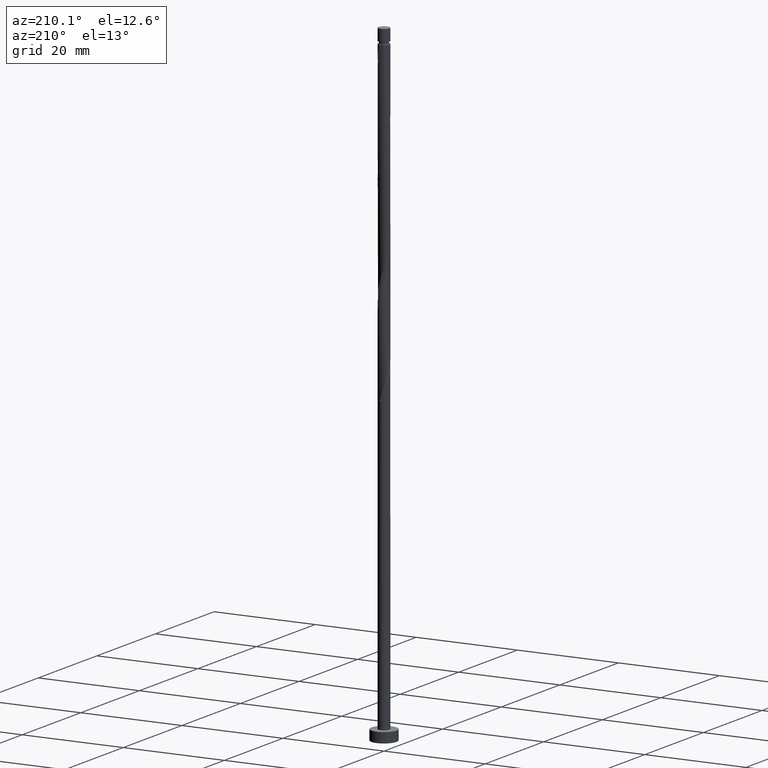
[diagram: clean part render]
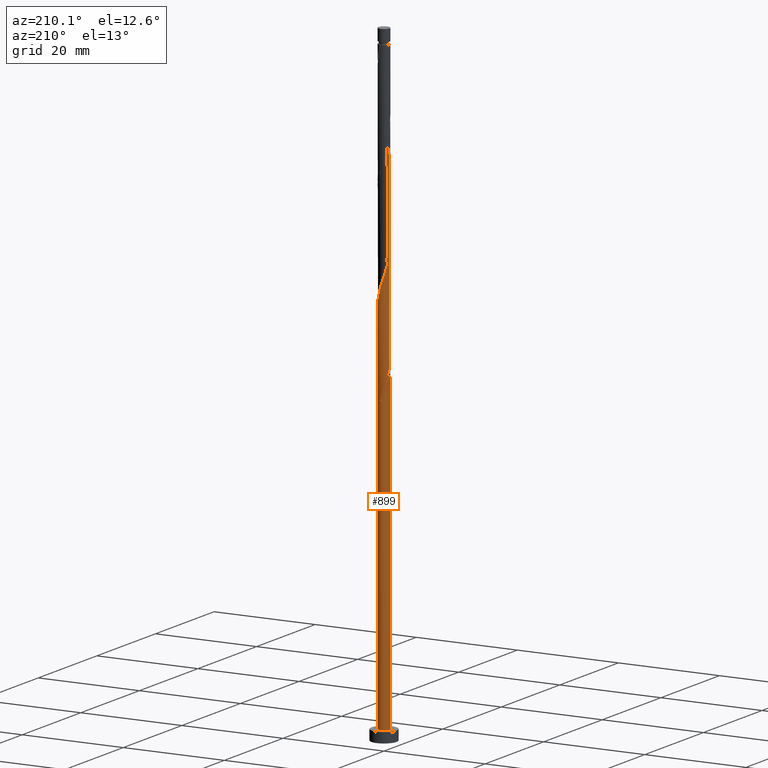
[diagram: same view with one face highlighted and labeled with its STEP entity id]
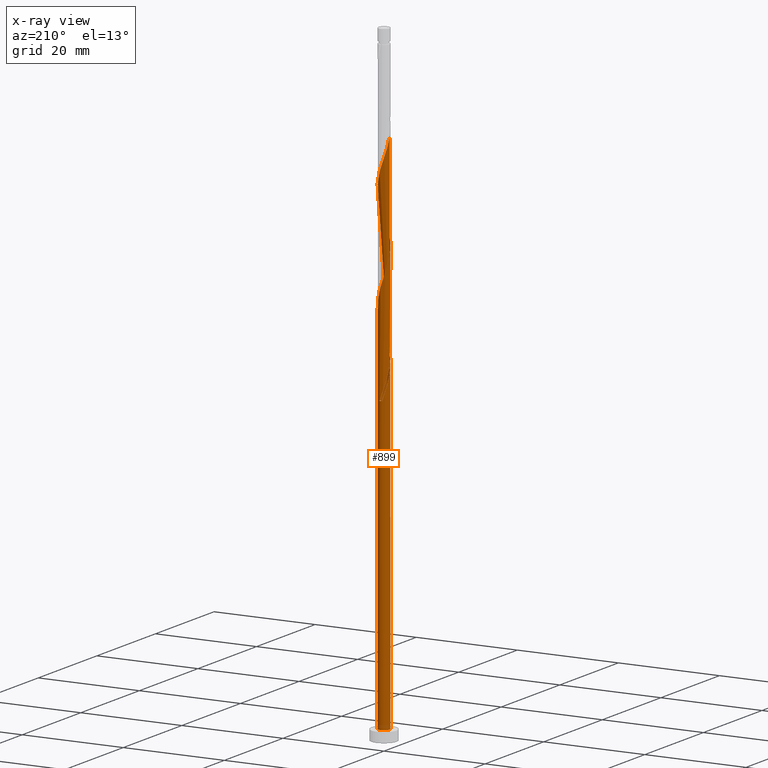
[diagram: x-ray of the same camera — body ghosted, the highlighted face saturated]
A machine part, auxiliary view. The second image highlights one B-rep face of the part: STEP entity #899.
The next image is the same camera in x-ray: the body ghosted, the highlighted face saturated — about 0% of this face is hidden behind the body in this view.
In plain terms, the highlighted cylindrical surface (bore or boss wall) has radius 1.1 mm, axis along (-0, -0, -1).
Its self-contained STEP definition (entity closure, byte-faithful):
#3 = CARTESIAN_POINT ( 'NONE',  ( 1.073093864886444537, -0.2980321636614846614, 94.63604752729968084 ) ) ;
#11 = CARTESIAN_POINT ( 'NONE',  ( 0.04815880949360650670, 1.112669916238338441, 60.26104752729966663 ) ) ;
#13 = CARTESIAN_POINT ( 'NONE',  ( 1.043330083761664806, 0.3896356628333070837, 96.71938086063299522 ) ) ;
#15 = CARTESIAN_POINT ( 'NONE',  ( -0.2980321636614846614, -1.073093864886444537, 89.42771419396635224 ) ) ;
#20 = CARTESIAN_POINT ( 'NONE',  ( 0.6929722627435899174, -0.8718618333782606200, 92.55271419396638066 ) ) ;
#25 = CARTESIAN_POINT ( 'NONE',  ( -0.1249366770839391017, -1.092881890562391600, 69.11521419396636645 ) ) ;
#40 = DIRECTION ( 'NONE',  ( -1.000000000000000000, 0.000000000000000000, 0.000000000000000000 ) ) ;
#42 = CARTESIAN_POINT ( 'NONE',  ( -1.100000000000001643, 0.06267111119107594830, 64.09423399662212262 ) ) ;
#71 = CARTESIAN_POINT ( 'NONE',  ( -0.3896356628333073058, 1.043330083761664806, 81.09438086063302364 ) ) ;
#77 = CARTESIAN_POINT ( 'NONE',  ( -1.100000000000001421, -1.311896493530488723E-15, 64.28374508582942326 ) ) ;
#96 = CARTESIAN_POINT ( 'NONE',  ( -1.100000000000001421, -0.1105541596785138275, 64.61804966123725080 ) ) ;
#98 = LINE ( 'NONE', #1273, #461 ) ;
#114 = CARTESIAN_POINT ( 'NONE',  ( -0.8718618333782606200, -0.6929722627435901394, 66.51104752729968084 ) ) ;
#120 = CARTESIAN_POINT ( 'NONE',  ( -0.4565409178933442225, -1.000784887120657052, 88.90688086063300943 ) ) ;
#122 = CARTESIAN_POINT ( 'NONE',  ( -0.5413039627884486116, 0.9575959585699624910, 102.4485475272996950 ) ) ;
#123 = ORIENTED_EDGE ( 'NONE', *, *, #410, .F. ) ;
#126 = CARTESIAN_POINT ( 'NONE',  ( 0.9575959585699624910, 0.5413039627884483895, 97.24021419396635224 ) ) ;
#132 = ORIENTED_EDGE ( 'NONE', *, *, #1030, .T. ) ;
#147 = ORIENTED_EDGE ( 'NONE', *, *, #1341, .T. ) ;
#154 = CARTESIAN_POINT ( 'NONE',  ( -1.100000000000000089, 0.000000000000000000, 2.000000000000000000 ) ) ;
#164 = CARTESIAN_POINT ( 'NONE',  ( -0.9575959585699624910, -0.5413039627884485006, 86.82354752729970926 ) ) ;
#172 = CARTESIAN_POINT ( 'NONE',  ( -0.5413039627884486116, 0.9575959585699624910, 60.78188086063302364 ) ) ;
#182 = CARTESIAN_POINT ( 'NONE',  ( 0.7434557527517321462, 0.8107240860492297418, 77.44854752729968084 ) ) ;
#189 = EDGE_CURVE ( 'NONE', #919, #224, #1407, .T. ) ;
#190 = CARTESIAN_POINT ( 'NONE',  ( 0.4565409178933443335, 1.000784887120657052, 78.49021419396633803 ) ) ;
#211 = DIRECTION ( 'NONE',  ( 1.000000000000000000, 0.000000000000000000, 0.000000000000000000 ) ) ;
#216 = CARTESIAN_POINT ( 'NONE',  ( -1.100000000000001643, 1.416848213012926496E-15, 65.61334996876993841 ) ) ;
#218 = CARTESIAN_POINT ( 'NONE',  ( 1.000784887120657052, -0.4565409178933442225, 94.11521419396635224 ) ) ;
#220 = CARTESIAN_POINT ( 'NONE',  ( -0.2188972361634566044, 1.078000000000001402, 59.74021419396634514 ) ) ;
#222 = CARTESIAN_POINT ( 'NONE',  ( -0.04815880949360622915, 1.112669916238338219, 100.8860475272996808 ) ) ;
#224 = VERTEX_POINT ( 'NONE', #692 ) ;
#225 = CARTESIAN_POINT ( 'NONE',  ( -0.8107240860492298529, 0.7434557527517319242, 82.65688086063300943 ) ) ;
#228 = CARTESIAN_POINT ( 'NONE',  ( 1.092881890562391600, -0.1249366770839391572, 95.15688086063299522 ) ) ;
#229 = CARTESIAN_POINT ( 'NONE',  ( -0.6150496721252035615, -0.9284759093548700104, 88.38604752729966663 ) ) ;
#232 = ORIENTED_EDGE ( 'NONE', *, *, #189, .F. ) ;
#245 = DIRECTION ( 'NONE',  ( -0.000000000000000000, -0.000000000000000000, -1.000000000000000000 ) ) ;
#256 = FACE_OUTER_BOUND ( 'NONE', #1118, .T. ) ;
#274 = CARTESIAN_POINT ( 'NONE',  ( -1.100000000000000089, 0.000000000000000000, 125.0000000000000000 ) ) ;
#294 = CARTESIAN_POINT ( 'NONE',  ( -0.4565409178933442225, -1.000784887120657052, 68.07354752729966663 ) ) ;
#295 = CARTESIAN_POINT ( 'NONE',  ( -0.7434557527517319242, -0.8107240860492298529, 67.03188086063302364 ) ) ;
#297 = VERTEX_POINT ( 'NONE', #1074 ) ;
#344 = CARTESIAN_POINT ( 'NONE',  ( 1.078000000000001402, 0.2188972361634567154, 75.36521419396633803 ) ) ;
#353 = CARTESIAN_POINT ( 'NONE',  ( 1.078000000000001402, 0.2188972361634567154, 96.19854752729966663 ) ) ;
#360 = CARTESIAN_POINT ( 'NONE',  ( 0.6150496721252037835, 0.9284759093548697884, 98.80271419396636645 ) ) ;
#367 = CARTESIAN_POINT ( 'NONE',  ( 0.9284759093548700104, -0.6150496721252037835, 93.59438086063300943 ) ) ;
#375 = CARTESIAN_POINT ( 'NONE',  ( -0.2188972361634566044, 1.078000000000001402, 59.74021419396634514 ) ) ;
#401 = CARTESIAN_POINT ( 'NONE',  ( -0.6150496721252035615, -0.9284759093548700104, 67.55271419396635224 ) ) ;
#410 = EDGE_CURVE ( 'NONE', #1195, #1306, #509, .T. ) ;
#412 = CARTESIAN_POINT ( 'NONE',  ( -1.100000000000001643, -7.346620363770735786E-16, 105.9504117524960805 ) ) ;
#435 = CARTESIAN_POINT ( 'NONE',  ( 0.1249366770839392821, 1.092881890562391600, 100.3652141939663522 ) ) ;
#444 = CARTESIAN_POINT ( 'NONE',  ( -0.6929722627435901394, 0.8718618333782606200, 102.9693808606330379 ) ) ;
#448 = CARTESIAN_POINT ( 'NONE',  ( -1.043330083761664806, -0.3896356628333071948, 65.46938086063300943 ) ) ;
#453 = CARTESIAN_POINT ( 'NONE',  ( 1.043330083761664806, 0.3896356628333070837, 75.88604752729969505 ) ) ;
#456 = CARTESIAN_POINT ( 'NONE',  ( 0.8718618333782606200, 0.6929722627435901394, 76.92771419396635224 ) ) ;
#461 = VECTOR ( 'NONE', #824, 1000.000000000000000 ) ;
#466 = CARTESIAN_POINT ( 'NONE',  ( 0.2188972361634572150, 1.078000000000001846, 59.74021419396634514 ) ) ;
#481 = CIRCLE ( 'NONE', #992, 1.100000000000000089 ) ;
#489 = CARTESIAN_POINT ( 'NONE',  ( 0.9284759093548700104, -0.6150496721252037835, 72.76104752729968084 ) ) ;
#509 =( BOUNDED_CURVE ( )  B_SPLINE_CURVE ( 2, ( #375, #1188, #172, #942, #628, #809, #1393, #1263, #931, #42, #1272 ),
 .UNSPECIFIED., .F., .T. ) 
 B_SPLINE_CURVE_WITH_KNOTS ( ( 3, 2, 2, 2, 2, 3 ),
 ( 0.000000000000000000, 0.01249999999999995559, 0.02500000000000002220, 0.03749999999999997780, 0.05000000000000004441, 0.05453220231385522143 ),
 .UNSPECIFIED. ) 
 CURVE ( )  GEOMETRIC_REPRESENTATION_ITEM ( )  RATIONAL_B_SPLINE_CURVE ( ( 0.9090909090909261581, 0.8978984914501420000, 0.9090909090909261581, 0.8978984914501420000, 0.9090909090909261581, 0.8978984914501420000, 0.9090909090909261581, 0.8978984914501420000, 0.9090909090909261581, 0.9050328050005904679, 0.9039174447099482812 ) ) 
 REPRESENTATION_ITEM ( '' )  );
#510 = CARTESIAN_POINT ( 'NONE',  ( -0.1249366770839391017, -1.092881890562391600, 89.94854752729966663 ) ) ;
#526 = VERTEX_POINT ( 'NONE', #547 ) ;
#528 = CARTESIAN_POINT ( 'NONE',  ( 0.04815880949360637486, -1.112669916238338219, 69.63604752729969505 ) ) ;
#542 = CARTESIAN_POINT ( 'NONE',  ( 0.3896356628333070837, -1.043330083761664806, 70.67771419396635224 ) ) ;
#547 = CARTESIAN_POINT ( 'NONE',  ( 1.100000000000000089, 0.000000000000000000, 2.000000000000000000 ) ) ;
#556 = VECTOR ( 'NONE', #245, 1000.000000000000000 ) ;
#575 = CARTESIAN_POINT ( 'NONE',  ( -0.1249366770839390184, 1.092881890562391822, 60.78188086063300233 ) ) ;
#584 = CARTESIAN_POINT ( 'NONE',  ( -0.7434557527517322573, 0.8107240860492299639, 62.86521419396634514 ) ) ;
#601 = AXIS2_PLACEMENT_3D ( 'NONE', #1383, #1274, #1170 ) ;
#612 = DIRECTION ( 'NONE',  ( 1.000000000000000000, 0.000000000000000000, 0.000000000000000000 ) ) ;
#616 = CARTESIAN_POINT ( 'NONE',  ( -0.7434557527517319242, -0.8107240860492298529, 87.86521419396632382 ) ) ;
#628 = CARTESIAN_POINT ( 'NONE',  ( -0.8107240860492298529, 0.7434557527517319242, 61.82354752729968084 ) ) ;
#634 = CARTESIAN_POINT ( 'NONE',  ( 0.000000000000000000, 0.000000000000000000, 2.000000000000000000 ) ) ;
#637 = CARTESIAN_POINT ( 'NONE',  ( -0.04815880949360622915, 1.112669916238338219, 80.05271419396633803 ) ) ;
#649 = CARTESIAN_POINT ( 'NONE',  ( 0.2980321636614847169, 1.073093864886444537, 79.01104752729966663 ) ) ;
#658 = CARTESIAN_POINT ( 'NONE',  ( -0.5413039627884486116, 0.9575959585699624910, 81.61521419396633803 ) ) ;
#659 = CARTESIAN_POINT ( 'NONE',  ( 0.1249366770839392821, 1.092881890562391600, 79.53188086063299522 ) ) ;
#667 = CARTESIAN_POINT ( 'NONE',  ( -0.9284759093548700104, 0.6150496721252035615, 104.0110475272996950 ) ) ;
#688 = CARTESIAN_POINT ( 'NONE',  ( -0.9575959585699628240, 0.5413039627884487226, 63.90688086063300943 ) ) ;
#689 = AXIS2_PLACEMENT_3D ( 'NONE', #634, #1073, #612 ) ;
#692 = CARTESIAN_POINT ( 'NONE',  ( -1.100000000000001643, 1.416848213012926496E-15, 65.61334996876993841 ) ) ;
#705 = CYLINDRICAL_SURFACE ( 'NONE', #1251, 1.100000000000000089 ) ;
#715 = CARTESIAN_POINT ( 'NONE',  ( 1.000784887120657052, -0.4565409178933442225, 73.28188086063298101 ) ) ;
#726 = CARTESIAN_POINT ( 'NONE',  ( -1.073093864886444315, 0.2980321636614846614, 84.21938086063303786 ) ) ;
#733 = EDGE_CURVE ( 'NONE', #948, #526, #1011, .T. ) ;
#762 = CARTESIAN_POINT ( 'NONE',  ( -1.100000000000001421, -1.311896493530488723E-15, 64.28374508582942326 ) ) ;
#772 = CARTESIAN_POINT ( 'NONE',  ( -0.8718618333782606200, 0.6929722627435899174, 63.38604752729966663 ) ) ;
#782 = CARTESIAN_POINT ( 'NONE',  ( -1.112669916238338219, -0.04815880949360647201, 85.26104752729968084 ) ) ;
#786 = CARTESIAN_POINT ( 'NONE',  ( -1.043330083761665028, 0.3896356628333072503, 64.42771419396632382 ) ) ;
#792 = CARTESIAN_POINT ( 'NONE',  ( -1.078000000000001846, 0.2188972361634569930, 64.94854752729966663 ) ) ;
#809 = CARTESIAN_POINT ( 'NONE',  ( -0.9284759093548700104, 0.6150496721252035615, 62.34438086063300943 ) ) ;
#824 = DIRECTION ( 'NONE',  ( -0.000000000000000000, -0.000000000000000000, -1.000000000000000000 ) ) ;
#828 = CARTESIAN_POINT ( 'NONE',  ( 0.000000000000000000, 0.000000000000000000, 2.000000000000000000 ) ) ;
#834 = CARTESIAN_POINT ( 'NONE',  ( 1.092881890562391600, -0.1249366770839391572, 74.32354752729966663 ) ) ;
#862 = CARTESIAN_POINT ( 'NONE',  ( -1.092881890562391600, 0.1249366770839390461, 105.5735475272996666 ) ) ;
#869 = CARTESIAN_POINT ( 'NONE',  ( -1.100000000000002309, 0.06267111119107098005, 105.7609006632888367 ) ) ;
#882 = CARTESIAN_POINT ( 'NONE',  ( -0.9575959585699624910, -0.5413039627884485006, 65.99021419396635224 ) ) ;
#889 = CARTESIAN_POINT ( 'NONE',  ( 0.8107240860492298529, -0.7434557527517319242, 72.24021419396635224 ) ) ;
#892 = CARTESIAN_POINT ( 'NONE',  ( -0.3896356628333073058, 1.043330083761664806, 101.9277141939663522 ) ) ;
#899 = ADVANCED_FACE ( 'NONE', ( #256 ), #705, .T. ) ;
#902 = CARTESIAN_POINT ( 'NONE',  ( 0.7434557527517321462, 0.8107240860492297418, 98.28188086063300943 ) ) ;
#919 = VERTEX_POINT ( 'NONE', #1381 ) ;
#931 = CARTESIAN_POINT ( 'NONE',  ( -1.092881890562391600, 0.1249366770839390461, 63.90688086063300943 ) ) ;
#942 = CARTESIAN_POINT ( 'NONE',  ( -0.6929722627435901394, 0.8718618333782606200, 61.30271419396635935 ) ) ;
#948 = VERTEX_POINT ( 'NONE', #154 ) ;
#970 = CIRCLE ( 'NONE', #601, 1.100000000000000089 ) ;
#991 = CARTESIAN_POINT ( 'NONE',  ( -1.000784887120657052, 0.4565409178933440004, 104.5318808606330094 ) ) ;
#992 = AXIS2_PLACEMENT_3D ( 'NONE', #828, #1444, #211 ) ;
#994 =( BOUNDED_CURVE ( )  B_SPLINE_CURVE ( 2, ( #762, #96, #998, #448, #882, #114, #295, #401, #294, #1192, #25, #528, #1419, #542, #1436, #1111, #889, #489, #715, #1056, #834, #1085, #344, #453, #999, #456, #182, #1312, #190, #649, #659, #637, #1076, #71, #658, #1403, #225, #1348, #1362, #726, #1177, #782, #1237, #1243, #164, #1123, #616, #229, #120, #15, #510, #1168, #1131, #1006, #1347, #20, #1367, #367, #218, #3, #228, #1121, #353, #13, #126, #1360, #902, #360, #1125, #1343, #435, #222, #1330, #892, #122, #444, #1009, #667, #991, #1337, #862, #869, #412 ),
 .UNSPECIFIED., .F., .T. ) 
 B_SPLINE_CURVE_WITH_KNOTS ( ( 3, 2, 2, 2, 2, 2, 2, 2, 2, 2, 2, 2, 2, 2, 2, 2, 2, 2, 2, 2, 2, 2, 2, 2, 2, 2, 2, 2, 2, 2, 2, 2, 2, 2, 2, 2, 2, 2, 2, 2, 2, 3 ),
 ( 0.05453220231385522143, 0.06250000000000000000, 0.07499999999999995559, 0.08750000000000002220, 0.09999999999999997780, 0.1125000000000000444, 0.1250000000000000000, 0.1374999999999999556, 0.1500000000000000222, 0.1624999999999999778, 0.1750000000000000444, 0.1875000000000000000, 0.1999999999999999556, 0.2125000000000000222, 0.2249999999999999778, 0.2375000000000000444, 0.2500000000000000000, 0.2624999999999999556, 0.2750000000000000222, 0.2874999999999999778, 0.3000000000000000444, 0.3125000000000000000, 0.3249999999999999556, 0.3375000000000000222, 0.3499999999999999778, 0.3625000000000000444, 0.3750000000000000000, 0.3874999999999999556, 0.4000000000000000222, 0.4124999999999999778, 0.4250000000000000444, 0.4375000000000000000, 0.4499999999999999556, 0.4625000000000000222, 0.4749999999999999778, 0.4875000000000000444, 0.5000000000000000000, 0.5124999999999999556, 0.5250000000000000222, 0.5374999999999999778, 0.5500000000000000444, 0.5545322023138555823 ),
 .UNSPECIFIED. ) 
 CURVE ( )  GEOMETRIC_REPRESENTATION_ITEM ( )  RATIONAL_B_SPLINE_CURVE ( ( 0.9039174447099482812, 0.9019565955404775792, 0.9090909090909261581, 0.8978984914501420000, 0.9090909090909261581, 0.8978984914501420000, 0.9090909090909261581, 0.8978984914501420000, 0.9090909090909261581, 0.8978984914501420000, 0.9090909090909261581, 0.8978984914501420000, 0.9090909090909261581, 0.8978984914501420000, 0.9090909090909261581, 0.8978984914501420000, 0.9090909090909261581, 0.8978984914501420000, 0.9090909090909261581, 0.8978984914501420000, 0.9090909090909261581, 0.8978984914501420000, 0.9090909090909261581, 0.8978984914501420000, 0.9090909090909261581, 0.8978984914501420000, 0.9090909090909261581, 0.8978984914501420000, 0.9090909090909261581, 0.8978984914501420000, 0.9090909090909261581, 0.8978984914501420000, 0.9090909090909261581, 0.8978984914501420000, 0.9090909090909261581, 0.8978984914501420000, 0.9090909090909261581, 0.8978984914501420000, 0.9090909090909261581, 0.8978984914501420000, 0.9090909090909261581, 0.8978984914501420000, 0.9090909090909261581, 0.8978984914501420000, 0.9090909090909261581, 0.8978984914501420000, 0.9090909090909261581, 0.8978984914501420000, 0.9090909090909261581, 0.8978984914501420000, 0.9090909090909261581, 0.8978984914501420000, 0.9090909090909261581, 0.8978984914501420000, 0.9090909090909261581, 0.8978984914501420000, 0.9090909090909261581, 0.8978984914501420000, 0.9090909090909261581, 0.8978984914501420000, 0.9090909090909261581, 0.8978984914501420000, 0.9090909090909261581, 0.8978984914501420000, 0.9090909090909261581, 0.8978984914501420000, 0.9090909090909261581, 0.8978984914501420000, 0.9090909090909261581, 0.8978984914501420000, 0.9090909090909261581, 0.8978984914501420000, 0.9090909090909261581, 0.8978984914501420000, 0.9090909090909261581, 0.8978984914501420000, 0.9090909090909261581, 0.8978984914501420000, 0.9090909090909261581, 0.8978984914501420000, 0.9090909090909261581, 0.9050328050005900238, 0.9039174447099480592 ) ) 
 REPRESENTATION_ITEM ( '' )  );
#997 = CARTESIAN_POINT ( 'NONE',  ( -0.2980321636614846059, 1.073093864886444537, 61.30271419396634514 ) ) ;
#998 = CARTESIAN_POINT ( 'NONE',  ( -1.078000000000001402, -0.2188972361634568264, 64.94854752729968084 ) ) ;
#999 = CARTESIAN_POINT ( 'NONE',  ( 0.9575959585699624910, 0.5413039627884483895, 76.40688086063303786 ) ) ;
#1006 = CARTESIAN_POINT ( 'NONE',  ( 0.3896356628333070837, -1.043330083761664806, 91.51104752729969505 ) ) ;
#1009 = CARTESIAN_POINT ( 'NONE',  ( -0.8107240860492298529, 0.7434557527517319242, 103.4902141939663380 ) ) ;
#1011 = CIRCLE ( 'NONE', #689, 1.100000000000000089 ) ;
#1018 = CARTESIAN_POINT ( 'NONE',  ( -0.6150496721252036725, 0.9284759093548698994, 62.34438086063300943 ) ) ;
#1030 = EDGE_CURVE ( 'NONE', #1195, #297, #970, .T. ) ;
#1056 = CARTESIAN_POINT ( 'NONE',  ( 1.073093864886444537, -0.2980321636614846614, 73.80271419396630961 ) ) ;
#1073 = DIRECTION ( 'NONE',  ( 0.000000000000000000, 0.000000000000000000, 1.000000000000000000 ) ) ;
#1074 = CARTESIAN_POINT ( 'NONE',  ( 0.2188972361634572150, 1.078000000000001846, 59.74021419396634514 ) ) ;
#1076 = CARTESIAN_POINT ( 'NONE',  ( -0.2188972361634566044, 1.078000000000001402, 80.57354752729968084 ) ) ;
#1085 = CARTESIAN_POINT ( 'NONE',  ( 1.112669916238338219, 0.04815880949360629854, 74.84438086063300943 ) ) ;
#1111 = CARTESIAN_POINT ( 'NONE',  ( 0.6929722627435899174, -0.8718618333782606200, 71.71938086063303786 ) ) ;
#1118 = EDGE_LOOP ( 'NONE', ( #232, #1139, #147, #1126, #1135, #1227, #123, #132, #1417 ) ) ;
#1121 = CARTESIAN_POINT ( 'NONE',  ( 1.112669916238338219, 0.04815880949360629854, 95.67771419396636645 ) ) ;
#1123 = CARTESIAN_POINT ( 'NONE',  ( -0.8718618333782606200, -0.6929722627435901394, 87.34438086063303786 ) ) ;
#1125 = CARTESIAN_POINT ( 'NONE',  ( 0.4565409178933443335, 1.000784887120657052, 99.32354752729968084 ) ) ;
#1126 = ORIENTED_EDGE ( 'NONE', *, *, #733, .T. ) ;
#1131 = CARTESIAN_POINT ( 'NONE',  ( 0.2188972361634567432, -1.078000000000001402, 90.99021419396633803 ) ) ;
#1135 = ORIENTED_EDGE ( 'NONE', *, *, #1176, .T. ) ;
#1139 = ORIENTED_EDGE ( 'NONE', *, *, #1199, .F. ) ;
#1154 = DIRECTION ( 'NONE',  ( -0.000000000000000000, -0.000000000000000000, -1.000000000000000000 ) ) ;
#1168 = CARTESIAN_POINT ( 'NONE',  ( 0.04815880949360637486, -1.112669916238338219, 90.46938086063302364 ) ) ;
#1170 = DIRECTION ( 'NONE',  ( -1.000000000000000000, 0.000000000000000000, 0.000000000000000000 ) ) ;
#1176 = EDGE_CURVE ( 'NONE', #526, #948, #481, .T. ) ;
#1177 = CARTESIAN_POINT ( 'NONE',  ( -1.092881890562391600, 0.1249366770839390461, 84.74021419396635224 ) ) ;
#1188 = CARTESIAN_POINT ( 'NONE',  ( -0.3896356628333073058, 1.043330083761664806, 60.26104752729968794 ) ) ;
#1192 = CARTESIAN_POINT ( 'NONE',  ( -0.2980321636614846614, -1.073093864886444537, 68.59438086063305207 ) ) ;
#1195 = VERTEX_POINT ( 'NONE', #220 ) ;
#1199 = EDGE_CURVE ( 'NONE', #1306, #919, #994, .T. ) ;
#1227 = ORIENTED_EDGE ( 'NONE', *, *, #1341, .F. ) ;
#1237 = CARTESIAN_POINT ( 'NONE',  ( -1.078000000000001402, -0.2188972361634568264, 85.78188086063302364 ) ) ;
#1241 = CARTESIAN_POINT ( 'NONE',  ( -0.4565409178933441670, 1.000784887120657496, 61.82354752729968084 ) ) ;
#1243 = CARTESIAN_POINT ( 'NONE',  ( -1.043330083761664806, -0.3896356628333071948, 86.30271419396633803 ) ) ;
#1251 = AXIS2_PLACEMENT_3D ( 'NONE', #1390, #1154, #40 ) ;
#1263 = CARTESIAN_POINT ( 'NONE',  ( -1.073093864886444315, 0.2980321636614846614, 63.38604752729967373 ) ) ;
#1272 = CARTESIAN_POINT ( 'NONE',  ( -1.100000000000001421, -1.311896493530488723E-15, 64.28374508582942326 ) ) ;
#1273 = CARTESIAN_POINT ( 'NONE',  ( -1.100000000000000089, 0.000000000000000000, 125.0000000000000000 ) ) ;
#1274 = DIRECTION ( 'NONE',  ( 0.000000000000000000, -0.000000000000000000, -1.000000000000000000 ) ) ;
#1306 = VERTEX_POINT ( 'NONE', #77 ) ;
#1312 = CARTESIAN_POINT ( 'NONE',  ( 0.6150496721252037835, 0.9284759093548697884, 77.96938086063303786 ) ) ;
#1330 = CARTESIAN_POINT ( 'NONE',  ( -0.2188972361634566044, 1.078000000000001402, 101.4068808606330379 ) ) ;
#1337 = CARTESIAN_POINT ( 'NONE',  ( -1.073093864886444315, 0.2980321636614846614, 105.0527141939663522 ) ) ;
#1341 = EDGE_CURVE ( 'NONE', #1306, #948, #98, .T. ) ;
#1343 = CARTESIAN_POINT ( 'NONE',  ( 0.2980321636614847169, 1.073093864886444537, 99.84438086063303786 ) ) ;
#1346 = CARTESIAN_POINT ( 'NONE',  ( -1.100000000000002087, 0.1105541596785127867, 65.27904539336209666 ) ) ;
#1347 = CARTESIAN_POINT ( 'NONE',  ( 0.5413039627884483895, -0.9575959585699624910, 92.03188086063302364 ) ) ;
#1348 = CARTESIAN_POINT ( 'NONE',  ( -0.9284759093548700104, 0.6150496721252035615, 83.17771419396639487 ) ) ;
#1360 = CARTESIAN_POINT ( 'NONE',  ( 0.8718618333782606200, 0.6929722627435901394, 97.76104752729969505 ) ) ;
#1362 = CARTESIAN_POINT ( 'NONE',  ( -1.000784887120657052, 0.4565409178933440004, 83.69854752729968084 ) ) ;
#1367 = CARTESIAN_POINT ( 'NONE',  ( 0.8107240860492298529, -0.7434557527517319242, 93.07354752729968084 ) ) ;
#1381 = CARTESIAN_POINT ( 'NONE',  ( -1.100000000000001421, -7.346620363770735786E-16, 105.9504117524960805 ) ) ;
#1383 = CARTESIAN_POINT ( 'NONE',  ( 0.000000000000000000, 0.000000000000000000, 59.74021419396635935 ) ) ;
#1390 = CARTESIAN_POINT ( 'NONE',  ( 0.000000000000000000, 0.000000000000000000, 125.0000000000000000 ) ) ;
#1393 = CARTESIAN_POINT ( 'NONE',  ( -1.000784887120657052, 0.4565409178933440004, 62.86521419396635935 ) ) ;
#1403 = CARTESIAN_POINT ( 'NONE',  ( -0.6929722627435901394, 0.8718618333782606200, 82.13604752729968084 ) ) ;
#1407 = LINE ( 'NONE', #274, #556 ) ;
#1417 = ORIENTED_EDGE ( 'NONE', *, *, #1448, .F. ) ;
#1419 = CARTESIAN_POINT ( 'NONE',  ( 0.2188972361634567432, -1.078000000000001402, 70.15688086063302364 ) ) ;
#1436 = CARTESIAN_POINT ( 'NONE',  ( 0.5413039627884483895, -0.9575959585699624910, 71.19854752729970926 ) ) ;
#1444 = DIRECTION ( 'NONE',  ( 0.000000000000000000, 0.000000000000000000, 1.000000000000000000 ) ) ;
#1448 = EDGE_CURVE ( 'NONE', #224, #297, #1450, .T. ) ;
#1450 =( BOUNDED_CURVE ( )  B_SPLINE_CURVE ( 2, ( #216, #1346, #792, #786, #688, #772, #584, #1018, #1241, #997, #575, #11, #466 ),
 .UNSPECIFIED., .F., .T. ) 
 B_SPLINE_CURVE_WITH_KNOTS ( ( 3, 2, 2, 2, 2, 2, 3 ),
 ( 0.9295322023138551382, 0.9375000000000000000, 0.9499999999999999556, 0.9625000000000000222, 0.9749999999999999778, 0.9875000000000000444, 1.000000000000000000 ),
 .UNSPECIFIED. ) 
 CURVE ( )  GEOMETRIC_REPRESENTATION_ITEM ( )  RATIONAL_B_SPLINE_CURVE ( ( 0.9039174447099489473, 0.9019565955404782454, 0.9090909090909268242, 0.8978984914501428882, 0.9090909090909268242, 0.8978984914501428882, 0.9090909090909268242, 0.8978984914501428882, 0.9090909090909268242, 0.8978984914501428882, 0.9090909090909268242, 0.8978984914501428882, 0.9090909090909268242 ) ) 
 REPRESENTATION_ITEM ( '' )  );